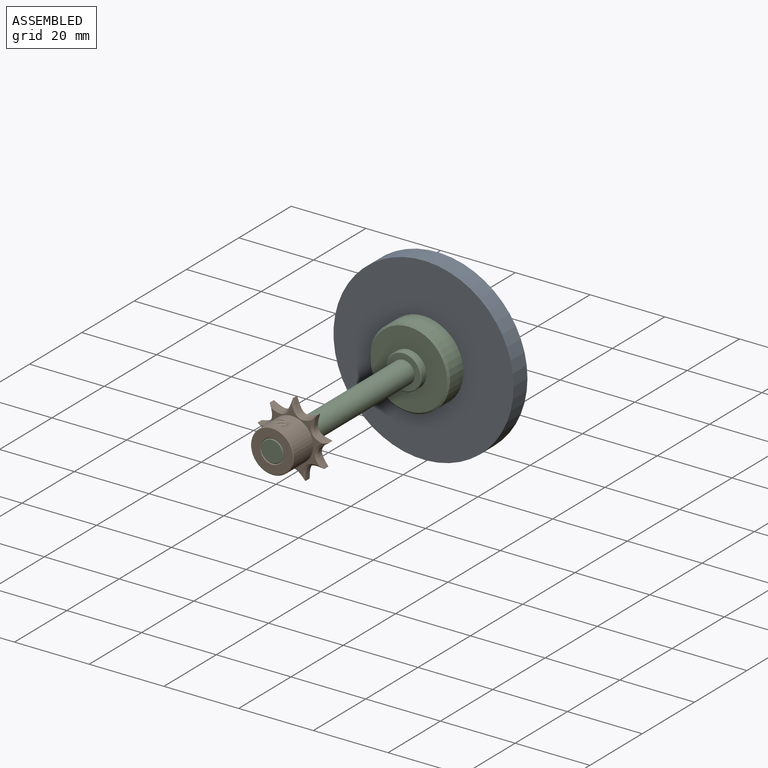
[diagram: assembled view]
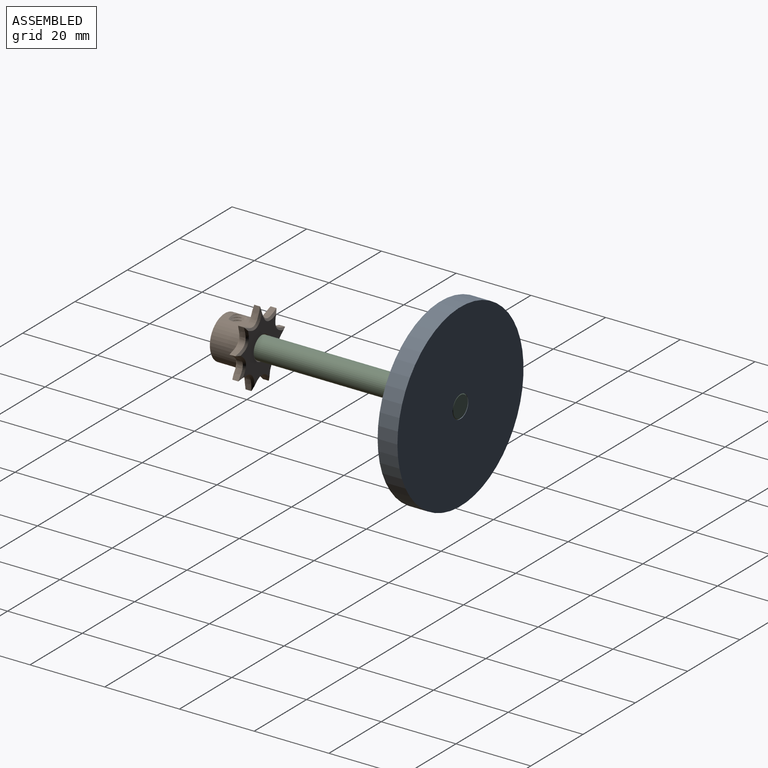
[diagram: assembled view, second angle]
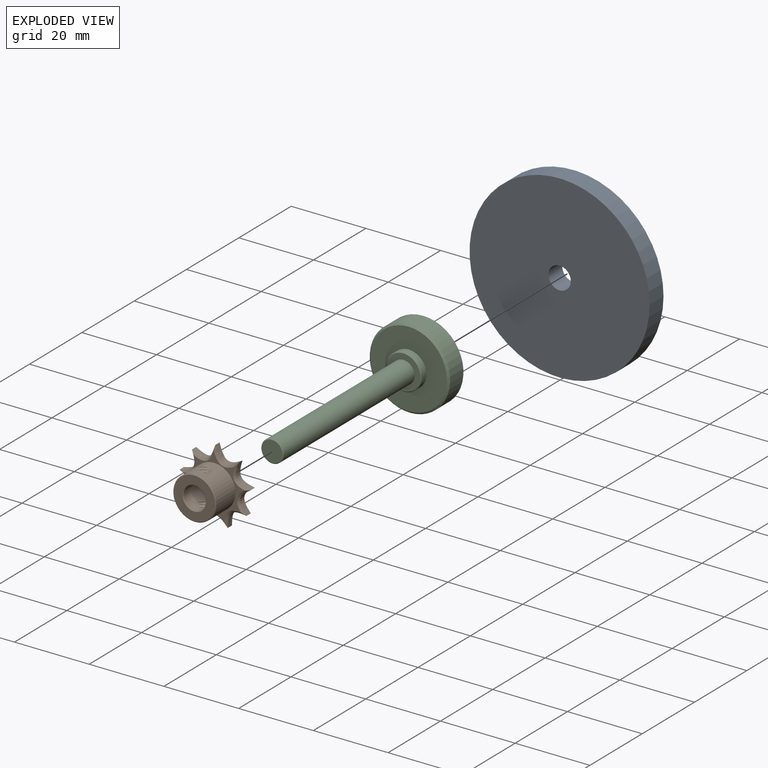
[diagram: exploded view]
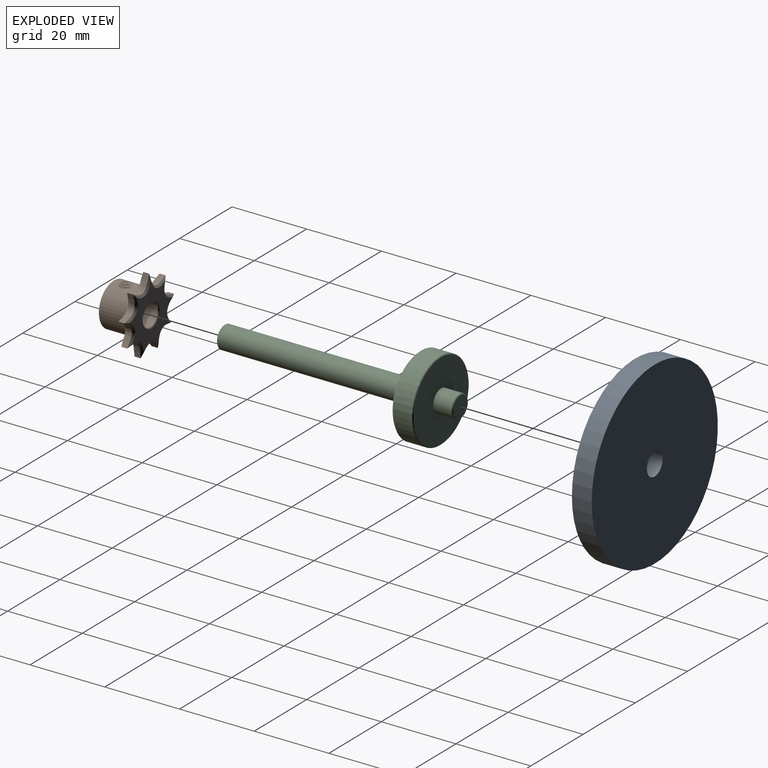
[diagram: exploded view, second angle]
ASSEMBLY  parts=3 mates=2
PART A: 4 faces, bbox 48.2x5.3x48.2 mm
  f0: cylinder r=3mm len=6mm, axis (0,1,0), area 99.9mm2, adj f2,f3
  f1: cylinder r=24.1mm len=48.2mm, axis (0,1,0), area 802.6mm2, adj f2,f3
  f2: plane 48.2x48.2mm, normal (0,-1,0), area 1796.4mm2, adj f0,f1
  f3: plane 48.2x48.2mm, normal (0,1,0), area 1796.4mm2, adj f0,f1
PART B: 81 faces, bbox 19.7x10.3x19.9 mm
  f0: cylinder r=1.6mm len=3.2mm, axis (0,0,1), area 0.4mm2, adj f24,f25,f31,f32,f40
  f1: cylinder r=1.6mm len=1.11mm, axis (0,0,1), area 0mm2, adj f25,f27,f33
  f2: cylinder r=1.6mm len=3.2mm, axis (0,0,1), area 0.4mm2, adj f24,f25,f27,f29
  f3: cylinder r=1.6mm len=2.33mm, axis (0,0,1), area 0mm2, adj f24,f29,f34
  f4: extruded ~3.76x2.27mm, area 7.2mm2, adj f5,f21,f53,f67
  f5: extruded ~3.96x1.6mm, area 6.7mm2, adj f4,f6,f51,f65
  f6: extruded ~3.99x1.6mm, area 6.6mm2, adj f5,f7,f49,f63
  f7: extruded ~3.65x1.74mm, area 6.7mm2, adj f6,f8,f47,f61
  f8: extruded ~2.85x2.82mm, area 6.6mm2, adj f7,f9,f45,f60
  f9: extruded ~3.68x1.71mm, area 6.7mm2, adj f8,f10,f43,f62
  f10: extruded ~3.99x1.6mm, area 6.6mm2, adj f9,f11,f42,f64
  f11: extruded ~3.9x1.6mm, area 6.7mm2, adj f10,f12,f44,f66
  f12: extruded ~3.27x2.31mm, area 6.6mm2, adj f11,f13,f46,f68
  f13: extruded ~3.34x2.29mm, area 6.7mm2, adj f12,f14,f48,f70
  f14: extruded ~3.87x1.6mm, area 6.6mm2, adj f13,f15,f50,f72
  f15: extruded ~4.03x1.6mm, area 6.7mm2, adj f14,f16,f52,f74
  f16: extruded ~3.62x1.74mm, area 6.6mm2, adj f15,f17,f54,f76
  f17: extruded ~2.89x2.83mm, area 6.7mm2, adj f16,f18,f56,f77
  f18: extruded ~3.64x1.67mm, area 6.6mm2, adj f17,f19,f58,f75
  f19: extruded ~4.03x1.6mm, area 6.7mm2, adj f18,f20,f59,f73
  f20: extruded ~3.9x1.6mm, area 6.7mm2, adj f19,f21,f57,f71
  f21: extruded ~3.76x2.28mm, area 7.3mm2, adj f4,f20,f55,f69
  f22: plane 16.71x16.65mm, normal (0,-1,0), area 44.8mm2, adj f25,f60,f61,f62,f63,f64,f65,f66
  f23: plane 16.71x16.65mm, normal (0,1,0), area 116.5mm2, adj f42,f43,f44,f45,f46,f47,f48,f49
  f24: cylinder r=3mm len=9.7mm, axis (0,1,0), area 158.9mm2, adj f0,f2,f3,f27,f29,f30,f31,f32
  f25: cylinder r=5.75mm len=11.5mm, axis (0,1,0), area 241mm2, adj f0,f1,f2,f22,f27,f28,f29,f31
  f26: plane 11.1x11.1mm, normal (0,-1,0), area 64.6mm2, adj f79,f80
  f27: bspline ~4.33x4.32mm, area 33mm2, adj f1,f2,f24,f25,f29,f30
  f28: bspline ~3.81x1.4mm, area 0mm2, adj f25,f29
  f29: bspline ~5.08x4.4mm, area 33.1mm2, adj f2,f3,f24,f25,f27,f28
  f30: bspline ~4.4x2.54mm, area 0mm2, adj f24,f27
  f31: bspline ~5.08x4.4mm, area 31.5mm2, adj f0,f24,f25,f32
  f32: bspline ~5.08x4.4mm, area 31.8mm2, adj f0,f24,f25,f31
  f33: bspline ~1.9x1.4mm, area 0mm2, adj f1,f25
  f34: bspline ~4.4x2.54mm, area 1.9mm2, adj f3,f24,f35
  f35: bspline ~4.4x2.54mm, area 0mm2, adj f24,f34
  f36: bspline ~2.2x1.15mm, area 0mm2, adj f24,f37
  f37: bspline ~2.2x1.15mm, area 0mm2, adj f24,f36
  f38: bspline ~2.2x1.15mm, area 0mm2, adj f24,f39
  f39: bspline ~2.2x1.15mm, area 0mm2, adj f24,f38
  f40: bspline ~4.4x2.54mm, area 2.2mm2, adj f0,f24,f41
  f41: bspline ~4.4x2.54mm, area 0mm2, adj f24,f40
  f42: bspline ~4.61x1.06mm, area 2.6mm2, adj f10,f23,f43,f44
  f43: bspline ~4.07x2.2mm, area 2.7mm2, adj f9,f23,f42,f45
  f44: bspline ~4.51x1.59mm, area 2.7mm2, adj f11,f23,f42,f46
  f45: bspline ~3.34x3.25mm, area 2.6mm2, adj f8,f23,f43,f47
  f46: bspline ~3.8x2.99mm, area 2.6mm2, adj f12,f23,f44,f48
  f47: bspline ~4.31x2.28mm, area 2.7mm2, adj f7,f23,f45,f49
  f48: bspline ~3.86x2.96mm, area 2.7mm2, adj f13,f23,f46,f50
  f49: bspline ~4.62x1.29mm, area 2.6mm2, adj f6,f23,f47,f51
  f50: bspline ~4.49x1.52mm, area 2.6mm2, adj f14,f23,f48,f52
  f51: bspline ~4.57x1.86mm, area 2.7mm2, adj f5,f23,f49,f53
  f52: bspline ~4.64x1.08mm, area 2.7mm2, adj f15,f23,f50,f54
  f53: bspline ~4.23x2.74mm, area 2.9mm2, adj f4,f23,f51,f55
  f54: bspline ~4.2x2.49mm, area 2.6mm2, adj f16,f23,f52,f56
  f55: bspline ~4.47x2.84mm, area 2.9mm2, adj f21,f23,f53,f57
  f56: bspline ~3.52x3.43mm, area 2.7mm2, adj f17,f23,f54,f58
  f57: bspline ~4.51x1.91mm, area 2.7mm2, adj f20,f23,f55,f59
  f58: bspline ~4.3x2.21mm, area 2.6mm2, adj f18,f23,f56,f59
  f59: bspline ~4.65x1.24mm, area 2.7mm2, adj f19,f23,f57,f58
  f60: bspline ~3.34x3.25mm, area 2.6mm2, adj f8,f22,f61,f62
  f61: bspline ~4.31x2.28mm, area 2.7mm2, adj f7,f22,f60,f63
  f62: bspline ~4.26x2.45mm, area 2.7mm2, adj f9,f22,f60,f64
  f63: bspline ~4.62x1.29mm, area 2.6mm2, adj f6,f22,f61,f65
  f64: bspline ~4.39x1.05mm, area 2.6mm2, adj f10,f22,f62,f66
  f65: bspline ~4.57x1.86mm, area 2.7mm2, adj f5,f22,f63,f67
  f66: bspline ~4.51x1.59mm, area 2.7mm2, adj f11,f22,f64,f68
  f67: bspline ~4.23x2.74mm, area 2.9mm2, adj f4,f22,f65,f69
  f68: bspline ~3.8x2.99mm, area 2.6mm2, adj f12,f22,f66,f70
  f69: bspline ~4.47x2.84mm, area 2.9mm2, adj f21,f22,f67,f71
  f70: bspline ~3.86x2.96mm, area 2.7mm2, adj f13,f22,f68,f72
  f71: bspline ~4.51x1.91mm, area 2.7mm2, adj f20,f22,f69,f73
  f72: bspline ~4.49x1.52mm, area 2.6mm2, adj f14,f22,f70,f74
  f73: bspline ~4.43x1.11mm, area 2.7mm2, adj f19,f22,f71,f75
  f74: bspline ~4.64x1.08mm, area 2.7mm2, adj f15,f22,f72,f76
  f75: bspline ~4.3x2.21mm, area 2.6mm2, adj f18,f22,f73,f77
  f76: bspline ~4.2x2.49mm, area 2.6mm2, adj f16,f22,f74,f77
  f77: bspline ~3.33x3.31mm, area 2.7mm2, adj f17,f22,f75,f76
  f78: cone r=3.2mm half-angle=45deg, axis (0,1,0), area 5.5mm2, adj f23,f24
  f79: cone r=5.55mm half-angle=45deg, axis (0,1,0), area 10mm2, adj f25,f26
  f80: cone r=3mm half-angle=45deg, axis (0,-1,0), area 5.5mm2, adj f24,f26
PART C: 14 faces, bbox 21.5x63.2x21.5 mm
  f0: cylinder r=10.75mm len=21.5mm, axis (0,1,0), area 344.5mm2, adj f9,f10
  f1: plane 20.5x20.5mm, normal (0,-1,0), area 259.2mm2, adj f3,f9
  f2: plane 21.1x21.1mm, normal (0,1,0), area 321.4mm2, adj f7,f10
  f3: cylinder r=4.75mm len=9.5mm, axis (0,1,0), area 53.7mm2, adj f1,f13
  f4: plane 9.1x9.1mm, normal (0,-1,0), area 36.8mm2, adj f5,f13
  f5: cylinder r=3mm len=50mm, axis (0,1,0), area 942.5mm2, adj f4,f12
  f6: plane 5.6x5.6mm, normal (0,-1,0), area 24.6mm2, adj f12
  f7: cylinder r=3mm len=6mm, axis (0,-1,0), area 94.2mm2, adj f2,f11
  f8: plane 5.6x5.6mm, normal (0,1,0), area 24.6mm2, adj f11
  f9: cone r=10.25mm half-angle=45deg, axis (0,1,0), area 46.7mm2, adj f0,f1
  f10: cone r=10.75mm half-angle=45deg, axis (0,-1,0), area 18.9mm2, adj f0,f2
  f11: cone r=2.8mm half-angle=45deg, axis (0,-1,0), area 5.2mm2, adj f7,f8
  f12: cone r=2.8mm half-angle=45deg, axis (0,1,0), area 5.2mm2, adj f5,f6
  f13: cone r=4.55mm half-angle=45deg, axis (0,1,0), area 8.3mm2, adj f3,f4
PLACE A t=(20.9,51.82,-5.63)mm
PLACE B t=(20.9,-1.28,-5.63)mm
PLACE C t=(20.9,46.62,-5.63)mm
MATE fastened A.f0 <-> C.f0  axis (0,1,0) through (20.9,51.82,-5.63)mm
MATE fastened C.f0 <-> B.f24  axis (0,-1,0) through (20.9,-11.38,-5.63)mm
